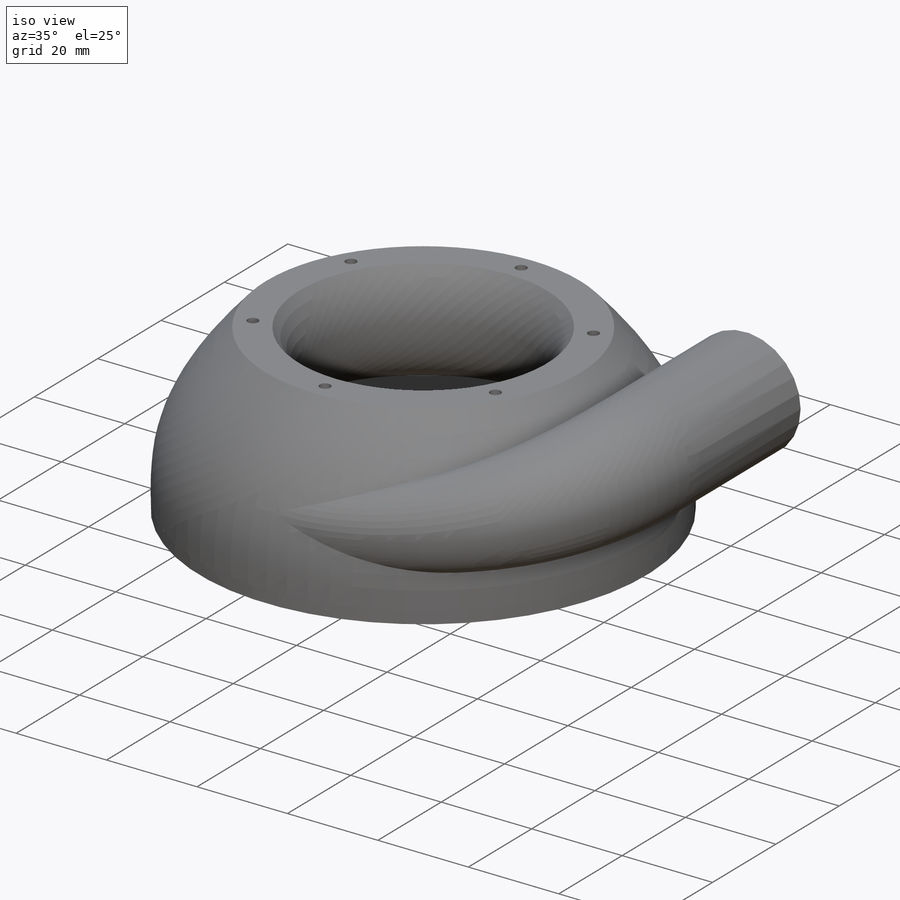
[diagram: iso view]
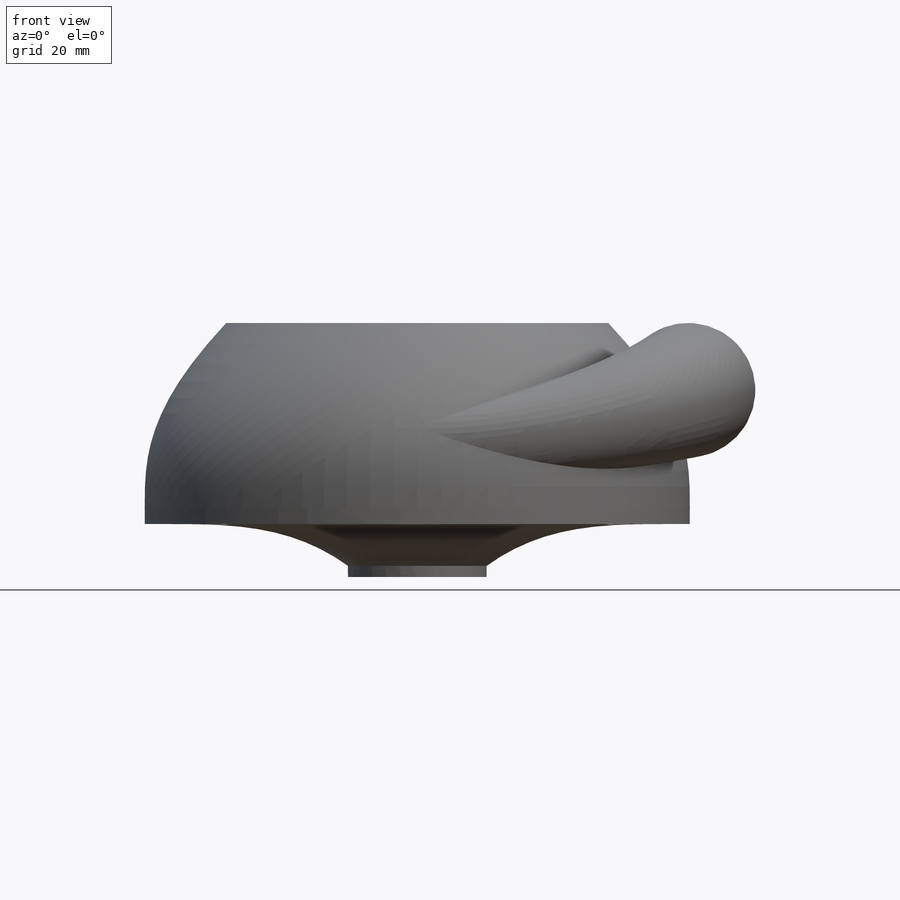
[diagram: front view]
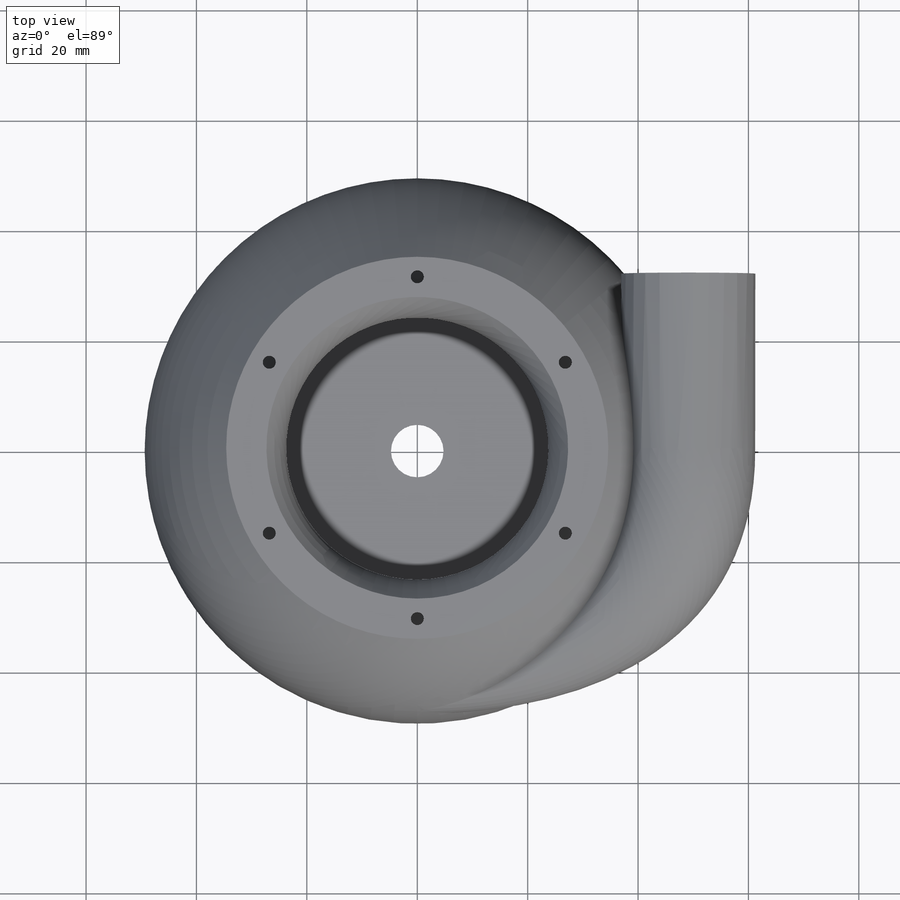
[diagram: top view]
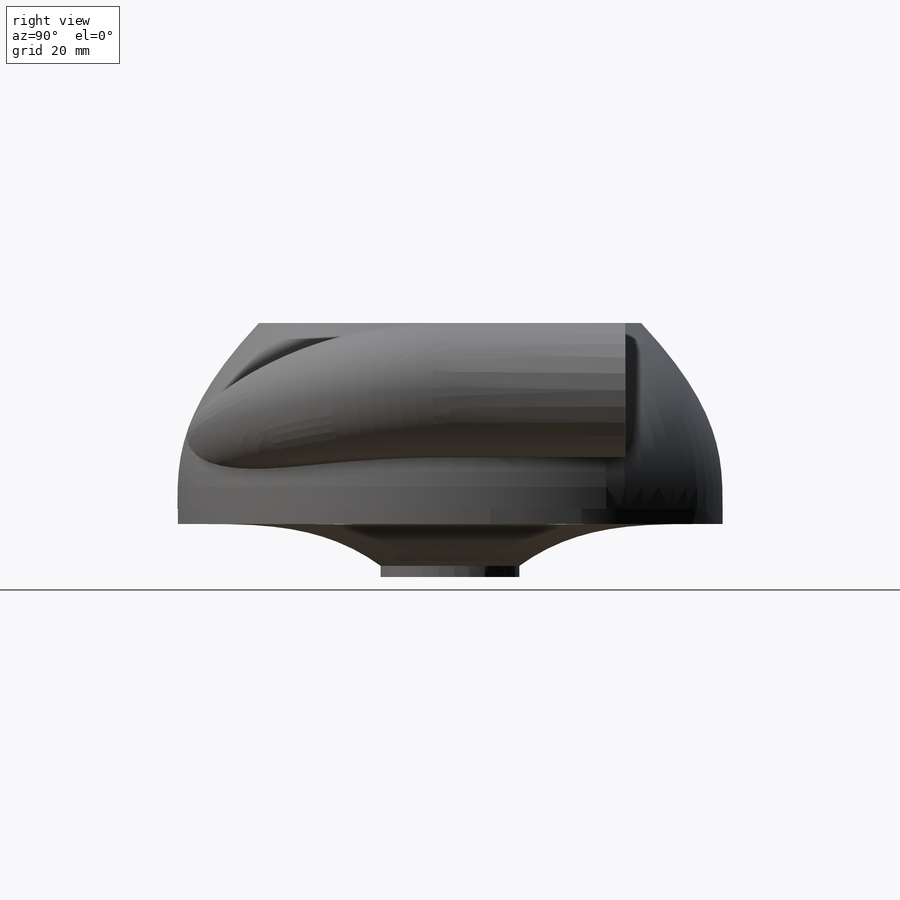
[diagram: right view]
SOLIDWORKS PART (.sldprt)
format: sldprt  version: not decoded by parser v0  size: 924,160 bytes
history: native  units: mm
features: sketch x21, cut_extrude x6, extrude x4, revolve x3, pattern_circular x2, material x1, helix x1, sweep x1, plane x1, cut_revolve x1, boolean_combine x1 (+16 scaffold rows collapsed)
feature tree (58):
  scaffold x16  (default folders/planes/origin — collapsed)
  material  "Material <not specified>"
  sketch  "Sketch1"  dims[D1=3.175mm D2=17.018mm]
  revolve  "Revolve1"  Angle=360deg
  sketch  "Sketch3"  dims[c1.D1=~0.975188mm c2.D1=60.0deg c2.D2=~0.264583mm c2.D3=~0.264583mm c3.D1=0.889mm c4.D1=60.0deg c4.D3=~0.264583mm c4.D4=~0.678332mm c5.D4=90.0deg]
  sketch  "Sketch4"
  helix  "Helix/Spiral1"  Pitch=12.7mm
  sweep  "Cut-Sweep1"
  sketch  "Sketch5"  dims[D1=9.525mm]
  extrude  "Boss-Extrude1"  Depth=0.8128mm
  sketch  "Sketch7"  dims[D1=2.54mm]
  revolve  "Revolve2"  Angle=360deg
  sketch  "Sketch8"  dims[c1.D3=12.7mm c1.D1=~2.962553mm c2.D1=45.0deg c2.D2=2.032mm]
  revolve  "Revolve3"  Angle=360deg
  sketch  "Sketch10"  dims[D1=19.05mm D2=25.146mm]
  extrude  "Boss-Extrude2"  Depth=2.032mm
  sketch  "Sketch11"
  cut_extrude  "Cut-Extrude2"  [1 undecoded]
  plane  "Plane1"  Offset=50.8mm
  sketch  "Sketch14"  dims[D1=19.05mm D2=~12.169948mm]
  sketch  "3DSketch1"
  sketch  "Sketch15"
  sketch  "Sketch18"
  sketch  "Sketch19"
  sketch  "Sketch20"
  extrude  "Boss-Extrude4"  Depth=31.75mm
  sketch  "Sketch21"
  cut_extrude  "Cut-Extrude4"  Depth=31.75mm
  sketch  "Sketch22"
  cut_revolve  "Cut-Revolve3"  Angle=139deg
  sketch  "Sketch24"  dims[D1=2.3622mm D2=4.7625mm]
  extrude  "Boss-Extrude5"  Depth=2.032mm
  sketch  "Sketch25"
  cut_extrude  "Cut-Extrude5"  Depth=7.112mm
  sketch  "Sketch26"  dims[D1=2.3622mm]
  cut_extrude  "Cut-Extrude6"  [1 undecoded]
  pattern_circular  "CirPattern1"  Count=6 Angle=360deg
  sketch  "Sketch27"
  cut_extrude  "Cut-Extrude7"  [1 undecoded]
  sketch  "Sketch28"
  cut_extrude  "Cut-Extrude8"  [1 undecoded]
  pattern_circular  "CirPattern2"  Count=6 Angle=360deg
  boolean_combine  "Combine1"
decode coverage: 22 of 40 modeling features carry decoded parameters
note: ~ marks probable driven/reference dimensions
note: 4 parameter values undecoded
summary: no parameter record found for 4 features
note: suppression state not decoded; provenance and decode notes live in map.json
